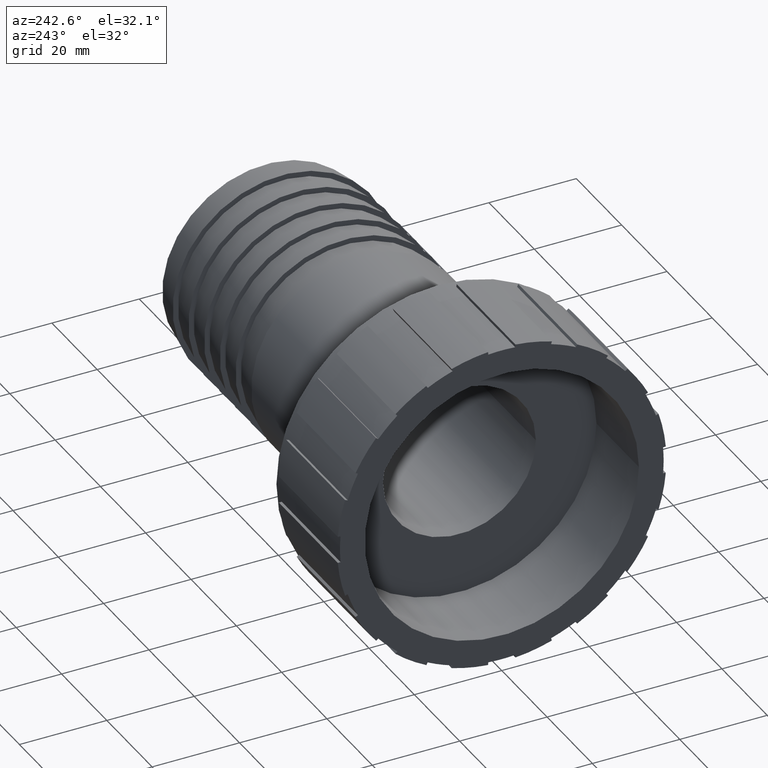
[diagram: clean part render]
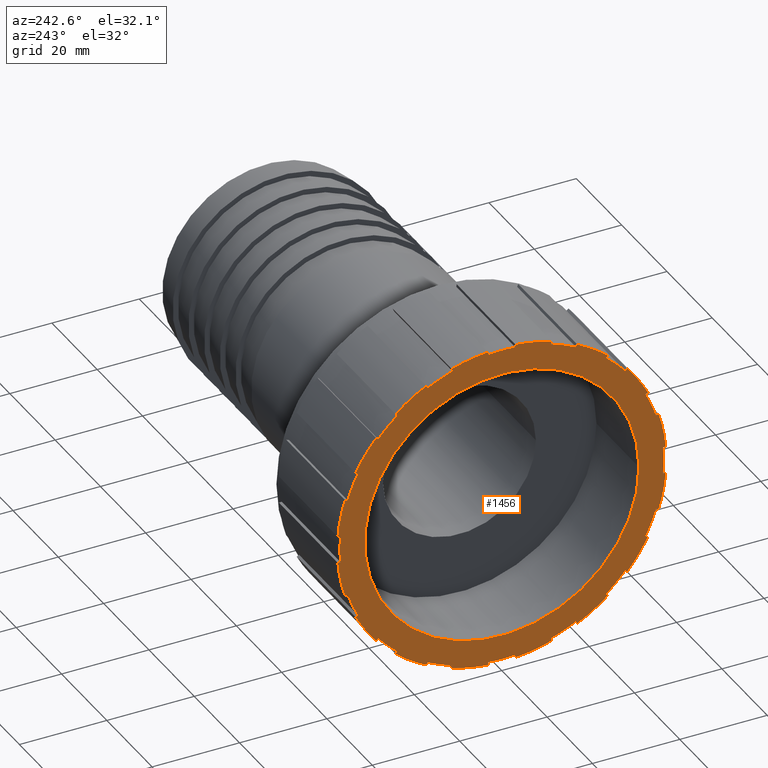
[diagram: same view with one face highlighted and labeled with its STEP entity id]
A machine part, auxiliary view. The second image highlights one B-rep face of the part: STEP entity #1456.
In plain terms, the highlighted planar face has unit normal (-1, 0, 0).
Its self-contained STEP definition (entity closure, byte-faithful):
#42=FACE_BOUND('',#260,.T.);
#62=CIRCLE('',#1543,37.02368);
#63=CIRCLE('',#1544,37.6512);
#64=CIRCLE('',#1545,37.02368);
#65=CIRCLE('',#1546,37.6512);
#66=CIRCLE('',#1547,37.02368);
#67=CIRCLE('',#1548,37.6512);
#68=CIRCLE('',#1549,37.02368);
#69=CIRCLE('',#1550,37.6512);
#70=CIRCLE('',#1551,37.02368);
#71=CIRCLE('',#1552,37.6512);
#72=CIRCLE('',#1553,37.02368);
#73=CIRCLE('',#1554,37.6512);
#74=CIRCLE('',#1555,37.02368);
#75=CIRCLE('',#1556,37.6512);
#76=CIRCLE('',#1557,37.02368);
#77=CIRCLE('',#1558,37.6512);
#78=CIRCLE('',#1559,37.02368);
#79=CIRCLE('',#1560,37.6512);
#80=CIRCLE('',#1561,37.02368);
#81=CIRCLE('',#1562,37.6512);
#82=CIRCLE('',#1563,37.02368);
#83=CIRCLE('',#1564,37.6512);
#84=CIRCLE('',#1565,37.02368);
#85=CIRCLE('',#1566,37.6512);
#86=CIRCLE('',#1567,37.02368);
#87=CIRCLE('',#1568,37.6512);
#88=CIRCLE('',#1569,37.02368);
#89=CIRCLE('',#1570,37.6512);
#90=CIRCLE('',#1571,37.02368);
#91=CIRCLE('',#1572,37.6512);
#92=CIRCLE('',#1573,37.02368);
#93=CIRCLE('',#1574,37.6512);
#94=CIRCLE('',#1575,31.376);
#175=FACE_OUTER_BOUND('',#259,.T.);
#259=EDGE_LOOP('',(#1067,#1068,#1069,#1070,#1071,#1072,#1073,#1074,#1075,
#1076,#1077,#1078,#1079,#1080,#1081,#1082,#1083,#1084,#1085,#1086,#1087,
#1088,#1089,#1090,#1091,#1092,#1093,#1094,#1095,#1096,#1097,#1098,#1099,
#1100,#1101,#1102,#1103,#1104,#1105,#1106,#1107,#1108,#1109,#1110,#1111,
#1112,#1113,#1114,#1115,#1116,#1117,#1118,#1119,#1120,#1121,#1122,#1123,
#1124,#1125,#1126,#1127,#1128,#1129,#1130));
#260=EDGE_LOOP('',(#1131));
#333=LINE('',#2147,#461);
#337=LINE('',#2156,#465);
#341=LINE('',#2165,#469);
#345=LINE('',#2174,#473);
#349=LINE('',#2183,#477);
#353=LINE('',#2192,#481);
#357=LINE('',#2201,#485);
#361=LINE('',#2210,#489);
#365=LINE('',#2219,#493);
#369=LINE('',#2228,#497);
#373=LINE('',#2237,#501);
#377=LINE('',#2246,#505);
#381=LINE('',#2255,#509);
#385=LINE('',#2264,#513);
#389=LINE('',#2273,#517);
#393=LINE('',#2282,#521);
#397=LINE('',#2291,#525);
#401=LINE('',#2300,#529);
#405=LINE('',#2309,#533);
#409=LINE('',#2318,#537);
#413=LINE('',#2327,#541);
#417=LINE('',#2336,#545);
#421=LINE('',#2345,#549);
#425=LINE('',#2354,#553);
#429=LINE('',#2363,#557);
#433=LINE('',#2372,#561);
#437=LINE('',#2381,#565);
#441=LINE('',#2390,#569);
#445=LINE('',#2399,#573);
#449=LINE('',#2408,#577);
#453=LINE('',#2419,#581);
#454=LINE('',#2423,#582);
#461=VECTOR('',#1683,0.627520000000013);
#465=VECTOR('',#1689,0.627520000000004);
#469=VECTOR('',#1695,0.627520000000008);
#473=VECTOR('',#1701,0.627519999999999);
#477=VECTOR('',#1707,0.627520000000017);
#481=VECTOR('',#1713,0.627520000000005);
#485=VECTOR('',#1719,0.627520000000018);
#489=VECTOR('',#1725,0.62752);
#493=VECTOR('',#1731,0.627520000000014);
#497=VECTOR('',#1737,0.627520000000005);
#501=VECTOR('',#1743,0.627520000000015);
#505=VECTOR('',#1749,0.627520000000008);
#509=VECTOR('',#1755,0.627520000000013);
#513=VECTOR('',#1761,0.627520000000006);
#517=VECTOR('',#1767,0.627520000000013);
#521=VECTOR('',#1773,0.627520000000001);
#525=VECTOR('',#1779,0.627520000000002);
#529=VECTOR('',#1785,0.62752000000001);
#533=VECTOR('',#1791,0.627520000000015);
#537=VECTOR('',#1797,0.62752000000001);
#541=VECTOR('',#1803,0.62752000000001);
#545=VECTOR('',#1809,0.62752000000001);
#549=VECTOR('',#1815,0.62752000000001);
#553=VECTOR('',#1821,0.627520000000001);
#557=VECTOR('',#1827,0.62752000000001);
#561=VECTOR('',#1833,0.627519999999997);
#565=VECTOR('',#1839,0.62752000000001);
#569=VECTOR('',#1845,0.627520000000006);
#573=VECTOR('',#1851,0.627520000000024);
#577=VECTOR('',#1857,0.627520000000006);
#581=VECTOR('',#1867,0.627520000000006);
#582=VECTOR('',#1870,0.627520000000006);
#589=VERTEX_POINT('',#2145);
#590=VERTEX_POINT('',#2146);
#593=VERTEX_POINT('',#2154);
#594=VERTEX_POINT('',#2155);
#597=VERTEX_POINT('',#2163);
#598=VERTEX_POINT('',#2164);
#601=VERTEX_POINT('',#2172);
#602=VERTEX_POINT('',#2173);
#605=VERTEX_POINT('',#2181);
#606=VERTEX_POINT('',#2182);
#609=VERTEX_POINT('',#2190);
#610=VERTEX_POINT('',#2191);
#613=VERTEX_POINT('',#2199);
#614=VERTEX_POINT('',#2200);
#617=VERTEX_POINT('',#2208);
#618=VERTEX_POINT('',#2209);
#621=VERTEX_POINT('',#2217);
#622=VERTEX_POINT('',#2218);
#625=VERTEX_POINT('',#2226);
#626=VERTEX_POINT('',#2227);
#629=VERTEX_POINT('',#2235);
#630=VERTEX_POINT('',#2236);
#633=VERTEX_POINT('',#2244);
#634=VERTEX_POINT('',#2245);
#637=VERTEX_POINT('',#2253);
#638=VERTEX_POINT('',#2254);
#641=VERTEX_POINT('',#2262);
#642=VERTEX_POINT('',#2263);
#645=VERTEX_POINT('',#2271);
#646=VERTEX_POINT('',#2272);
#649=VERTEX_POINT('',#2280);
#650=VERTEX_POINT('',#2281);
#653=VERTEX_POINT('',#2289);
#654=VERTEX_POINT('',#2290);
#657=VERTEX_POINT('',#2298);
#658=VERTEX_POINT('',#2299);
#661=VERTEX_POINT('',#2307);
#662=VERTEX_POINT('',#2308);
#665=VERTEX_POINT('',#2316);
#666=VERTEX_POINT('',#2317);
#669=VERTEX_POINT('',#2325);
#670=VERTEX_POINT('',#2326);
#673=VERTEX_POINT('',#2334);
#674=VERTEX_POINT('',#2335);
#677=VERTEX_POINT('',#2343);
#678=VERTEX_POINT('',#2344);
#681=VERTEX_POINT('',#2352);
#682=VERTEX_POINT('',#2353);
#685=VERTEX_POINT('',#2361);
#686=VERTEX_POINT('',#2362);
#689=VERTEX_POINT('',#2370);
#690=VERTEX_POINT('',#2371);
#693=VERTEX_POINT('',#2379);
#694=VERTEX_POINT('',#2380);
#697=VERTEX_POINT('',#2388);
#698=VERTEX_POINT('',#2389);
#701=VERTEX_POINT('',#2397);
#702=VERTEX_POINT('',#2398);
#705=VERTEX_POINT('',#2406);
#706=VERTEX_POINT('',#2407);
#709=VERTEX_POINT('',#2416);
#710=VERTEX_POINT('',#2418);
#711=VERTEX_POINT('',#2420);
#712=VERTEX_POINT('',#2422);
#713=VERTEX_POINT('',#2453);
#736=EDGE_CURVE('',#589,#590,#333,.T.);
#740=EDGE_CURVE('',#593,#594,#337,.T.);
#744=EDGE_CURVE('',#597,#598,#341,.T.);
#748=EDGE_CURVE('',#601,#602,#345,.T.);
#752=EDGE_CURVE('',#605,#606,#349,.T.);
#756=EDGE_CURVE('',#609,#610,#353,.T.);
#760=EDGE_CURVE('',#613,#614,#357,.T.);
#764=EDGE_CURVE('',#617,#618,#361,.T.);
#768=EDGE_CURVE('',#621,#622,#365,.T.);
#772=EDGE_CURVE('',#625,#626,#369,.T.);
#776=EDGE_CURVE('',#629,#630,#373,.T.);
#780=EDGE_CURVE('',#633,#634,#377,.T.);
#784=EDGE_CURVE('',#637,#638,#381,.T.);
#788=EDGE_CURVE('',#641,#642,#385,.T.);
#792=EDGE_CURVE('',#645,#646,#389,.T.);
#796=EDGE_CURVE('',#649,#650,#393,.T.);
#800=EDGE_CURVE('',#653,#654,#397,.T.);
#804=EDGE_CURVE('',#657,#658,#401,.T.);
#808=EDGE_CURVE('',#661,#662,#405,.T.);
#812=EDGE_CURVE('',#665,#666,#409,.T.);
#816=EDGE_CURVE('',#669,#670,#413,.T.);
#820=EDGE_CURVE('',#673,#674,#417,.T.);
#824=EDGE_CURVE('',#677,#678,#421,.T.);
#828=EDGE_CURVE('',#681,#682,#425,.T.);
#832=EDGE_CURVE('',#685,#686,#429,.T.);
#836=EDGE_CURVE('',#689,#690,#433,.T.);
#840=EDGE_CURVE('',#693,#694,#437,.T.);
#844=EDGE_CURVE('',#697,#698,#441,.T.);
#848=EDGE_CURVE('',#701,#702,#445,.T.);
#852=EDGE_CURVE('',#705,#706,#449,.T.);
#856=EDGE_CURVE('',#594,#589,#62,.T.);
#857=EDGE_CURVE('',#590,#709,#63,.T.);
#858=EDGE_CURVE('',#709,#710,#453,.T.);
#859=EDGE_CURVE('',#710,#711,#64,.T.);
#860=EDGE_CURVE('',#711,#712,#454,.T.);
#861=EDGE_CURVE('',#712,#705,#65,.T.);
#862=EDGE_CURVE('',#706,#701,#66,.T.);
#863=EDGE_CURVE('',#702,#697,#67,.T.);
#864=EDGE_CURVE('',#698,#693,#68,.T.);
#865=EDGE_CURVE('',#694,#689,#69,.T.);
#866=EDGE_CURVE('',#690,#685,#70,.T.);
#867=EDGE_CURVE('',#686,#681,#71,.T.);
#868=EDGE_CURVE('',#682,#677,#72,.T.);
#869=EDGE_CURVE('',#678,#673,#73,.T.);
#870=EDGE_CURVE('',#674,#669,#74,.T.);
#871=EDGE_CURVE('',#670,#665,#75,.T.);
#872=EDGE_CURVE('',#666,#661,#76,.T.);
#873=EDGE_CURVE('',#662,#657,#77,.T.);
#874=EDGE_CURVE('',#658,#653,#78,.T.);
#875=EDGE_CURVE('',#654,#649,#79,.T.);
#876=EDGE_CURVE('',#650,#645,#80,.T.);
#877=EDGE_CURVE('',#646,#641,#81,.T.);
#878=EDGE_CURVE('',#642,#637,#82,.T.);
#879=EDGE_CURVE('',#638,#633,#83,.T.);
#880=EDGE_CURVE('',#634,#629,#84,.T.);
#881=EDGE_CURVE('',#630,#625,#85,.T.);
#882=EDGE_CURVE('',#626,#621,#86,.T.);
#883=EDGE_CURVE('',#622,#617,#87,.T.);
#884=EDGE_CURVE('',#618,#613,#88,.T.);
#885=EDGE_CURVE('',#614,#609,#89,.T.);
#886=EDGE_CURVE('',#610,#605,#90,.T.);
#887=EDGE_CURVE('',#606,#601,#91,.T.);
#888=EDGE_CURVE('',#602,#597,#92,.T.);
#889=EDGE_CURVE('',#598,#593,#93,.T.);
#890=EDGE_CURVE('',#713,#713,#94,.T.);
#1067=ORIENTED_EDGE('',*,*,#740,.T.);
#1068=ORIENTED_EDGE('',*,*,#856,.T.);
#1069=ORIENTED_EDGE('',*,*,#736,.T.);
#1070=ORIENTED_EDGE('',*,*,#857,.T.);
#1071=ORIENTED_EDGE('',*,*,#858,.T.);
#1072=ORIENTED_EDGE('',*,*,#859,.T.);
#1073=ORIENTED_EDGE('',*,*,#860,.T.);
#1074=ORIENTED_EDGE('',*,*,#861,.T.);
#1075=ORIENTED_EDGE('',*,*,#852,.T.);
#1076=ORIENTED_EDGE('',*,*,#862,.T.);
#1077=ORIENTED_EDGE('',*,*,#848,.T.);
#1078=ORIENTED_EDGE('',*,*,#863,.T.);
#1079=ORIENTED_EDGE('',*,*,#844,.T.);
#1080=ORIENTED_EDGE('',*,*,#864,.T.);
#1081=ORIENTED_EDGE('',*,*,#840,.T.);
#1082=ORIENTED_EDGE('',*,*,#865,.T.);
#1083=ORIENTED_EDGE('',*,*,#836,.T.);
#1084=ORIENTED_EDGE('',*,*,#866,.T.);
#1085=ORIENTED_EDGE('',*,*,#832,.T.);
#1086=ORIENTED_EDGE('',*,*,#867,.T.);
#1087=ORIENTED_EDGE('',*,*,#828,.T.);
#1088=ORIENTED_EDGE('',*,*,#868,.T.);
#1089=ORIENTED_EDGE('',*,*,#824,.T.);
#1090=ORIENTED_EDGE('',*,*,#869,.T.);
#1091=ORIENTED_EDGE('',*,*,#820,.T.);
#1092=ORIENTED_EDGE('',*,*,#870,.T.);
#1093=ORIENTED_EDGE('',*,*,#816,.T.);
#1094=ORIENTED_EDGE('',*,*,#871,.T.);
#1095=ORIENTED_EDGE('',*,*,#812,.T.);
#1096=ORIENTED_EDGE('',*,*,#872,.T.);
#1097=ORIENTED_EDGE('',*,*,#808,.T.);
#1098=ORIENTED_EDGE('',*,*,#873,.T.);
#1099=ORIENTED_EDGE('',*,*,#804,.T.);
#1100=ORIENTED_EDGE('',*,*,#874,.T.);
#1101=ORIENTED_EDGE('',*,*,#800,.T.);
#1102=ORIENTED_EDGE('',*,*,#875,.T.);
#1103=ORIENTED_EDGE('',*,*,#796,.T.);
#1104=ORIENTED_EDGE('',*,*,#876,.T.);
#1105=ORIENTED_EDGE('',*,*,#792,.T.);
#1106=ORIENTED_EDGE('',*,*,#877,.T.);
#1107=ORIENTED_EDGE('',*,*,#788,.T.);
#1108=ORIENTED_EDGE('',*,*,#878,.T.);
#1109=ORIENTED_EDGE('',*,*,#784,.T.);
#1110=ORIENTED_EDGE('',*,*,#879,.T.);
#1111=ORIENTED_EDGE('',*,*,#780,.T.);
#1112=ORIENTED_EDGE('',*,*,#880,.T.);
#1113=ORIENTED_EDGE('',*,*,#776,.T.);
#1114=ORIENTED_EDGE('',*,*,#881,.T.);
#1115=ORIENTED_EDGE('',*,*,#772,.T.);
#1116=ORIENTED_EDGE('',*,*,#882,.T.);
#1117=ORIENTED_EDGE('',*,*,#768,.T.);
#1118=ORIENTED_EDGE('',*,*,#883,.T.);
#1119=ORIENTED_EDGE('',*,*,#764,.T.);
#1120=ORIENTED_EDGE('',*,*,#884,.T.);
#1121=ORIENTED_EDGE('',*,*,#760,.T.);
#1122=ORIENTED_EDGE('',*,*,#885,.T.);
#1123=ORIENTED_EDGE('',*,*,#756,.T.);
#1124=ORIENTED_EDGE('',*,*,#886,.T.);
#1125=ORIENTED_EDGE('',*,*,#752,.T.);
#1126=ORIENTED_EDGE('',*,*,#887,.T.);
#1127=ORIENTED_EDGE('',*,*,#748,.T.);
#1128=ORIENTED_EDGE('',*,*,#888,.T.);
#1129=ORIENTED_EDGE('',*,*,#744,.T.);
#1130=ORIENTED_EDGE('',*,*,#889,.T.);
#1131=ORIENTED_EDGE('',*,*,#890,.F.);
#1399=PLANE('',#1542);
#1456=ADVANCED_FACE('',(#175,#42),#1399,.T.);
#1542=AXIS2_PLACEMENT_3D('',#2414,#1861,#1862);
#1543=AXIS2_PLACEMENT_3D('',#2415,#1863,#1864);
#1544=AXIS2_PLACEMENT_3D('',#2417,#1865,#1866);
#1545=AXIS2_PLACEMENT_3D('',#2421,#1868,#1869);
#1546=AXIS2_PLACEMENT_3D('',#2424,#1871,#1872);
#1547=AXIS2_PLACEMENT_3D('',#2425,#1873,#1874);
#1548=AXIS2_PLACEMENT_3D('',#2426,#1875,#1876);
#1549=AXIS2_PLACEMENT_3D('',#2427,#1877,#1878);
#1550=AXIS2_PLACEMENT_3D('',#2428,#1879,#1880);
#1551=AXIS2_PLACEMENT_3D('',#2429,#1881,#1882);
#1552=AXIS2_PLACEMENT_3D('',#2430,#1883,#1884);
#1553=AXIS2_PLACEMENT_3D('',#2431,#1885,#1886);
#1554=AXIS2_PLACEMENT_3D('',#2432,#1887,#1888);
#1555=AXIS2_PLACEMENT_3D('',#2433,#1889,#1890);
#1556=AXIS2_PLACEMENT_3D('',#2434,#1891,#1892);
#1557=AXIS2_PLACEMENT_3D('',#2435,#1893,#1894);
#1558=AXIS2_PLACEMENT_3D('',#2436,#1895,#1896);
#1559=AXIS2_PLACEMENT_3D('',#2437,#1897,#1898);
#1560=AXIS2_PLACEMENT_3D('',#2438,#1899,#1900);
#1561=AXIS2_PLACEMENT_3D('',#2439,#1901,#1902);
#1562=AXIS2_PLACEMENT_3D('',#2440,#1903,#1904);
#1563=AXIS2_PLACEMENT_3D('',#2441,#1905,#1906);
#1564=AXIS2_PLACEMENT_3D('',#2442,#1907,#1908);
#1565=AXIS2_PLACEMENT_3D('',#2443,#1909,#1910);
#1566=AXIS2_PLACEMENT_3D('',#2444,#1911,#1912);
#1567=AXIS2_PLACEMENT_3D('',#2445,#1913,#1914);
#1568=AXIS2_PLACEMENT_3D('',#2446,#1915,#1916);
#1569=AXIS2_PLACEMENT_3D('',#2447,#1917,#1918);
#1570=AXIS2_PLACEMENT_3D('',#2448,#1919,#1920);
#1571=AXIS2_PLACEMENT_3D('',#2449,#1921,#1922);
#1572=AXIS2_PLACEMENT_3D('',#2450,#1923,#1924);
#1573=AXIS2_PLACEMENT_3D('',#2451,#1925,#1926);
#1574=AXIS2_PLACEMENT_3D('',#2452,#1927,#1928);
#1575=AXIS2_PLACEMENT_3D('',#2454,#1929,#1930);
#1683=DIRECTION('',(0.,-0.30436239448129,0.95255631477914));
#1689=DIRECTION('',(0.,0.458342316566504,-0.888775742718292));
#1695=DIRECTION('',(0.,-0.645721706788113,0.763572836985868));
#1701=DIRECTION('',(0.,0.76357283698587,-0.64572170678811));
#1707=DIRECTION('',(0.,-0.888775742718293,0.458342316566502));
#1713=DIRECTION('',(0.,0.95255631477914,-0.304362394481288));
#1719=DIRECTION('',(0.,-0.996521728591783,0.0833333333333313));
#1725=DIRECTION('',(0.,0.996521728591783,0.0833333333333344));
#1731=DIRECTION('',(0.,-0.95255631477914,-0.30436239448129));
#1737=DIRECTION('',(0.,0.888775742718292,0.458342316566504));
#1743=DIRECTION('',(0.,-0.763572836985868,-0.645721706788112));
#1749=DIRECTION('',(0.,0.645721706788111,0.763572836985869));
#1755=DIRECTION('',(0.,-0.458342316566502,-0.888775742718293));
#1761=DIRECTION('',(0.,0.304362394481288,0.95255631477914));
#1767=DIRECTION('',(0.,-0.0833333333333318,-0.996521728591783));
#1773=DIRECTION('',(0.,-0.0833333333333338,0.996521728591783));
#1779=DIRECTION('',(0.,0.30436239448129,-0.95255631477914));
#1785=DIRECTION('',(0.,-0.458342316566504,0.888775742718292));
#1791=DIRECTION('',(0.,0.645721706788112,-0.763572836985868));
#1797=DIRECTION('',(0.,-0.763572836985869,0.645721706788111));
#1803=DIRECTION('',(0.,0.888775742718292,-0.458342316566502));
#1809=DIRECTION('',(0.,-0.95255631477914,0.304362394481289));
#1815=DIRECTION('',(0.,0.996521728591783,-0.0833333333333321));
#1821=DIRECTION('',(0.,-0.996521728591783,-0.0833333333333335));
#1827=DIRECTION('',(0.,0.95255631477914,0.30436239448129));
#1833=DIRECTION('',(0.,-0.888775742718292,-0.458342316566503));
#1839=DIRECTION('',(0.,0.763572836985868,0.645721706788112));
#1845=DIRECTION('',(0.,-0.645721706788111,-0.763572836985869));
#1851=DIRECTION('',(0.,0.458342316566502,0.888775742718292));
#1857=DIRECTION('',(0.,-0.304362394481289,-0.95255631477914));
#1861=DIRECTION('center_axis',(-1.,0.,0.));
#1862=DIRECTION('ref_axis',(0.,0.,1.));
#1863=DIRECTION('center_axis',(-1.,0.,0.));
#1864=DIRECTION('ref_axis',(0.,-0.38268343236509,0.923879532511286));
#1865=DIRECTION('center_axis',(-1.,0.,0.));
#1866=DIRECTION('ref_axis',(0.,0.,1.));
#1867=DIRECTION('',(0.,0.0833333333333333,-0.996521728591783));
#1868=DIRECTION('center_axis',(-1.,0.,0.));
#1869=DIRECTION('ref_axis',(0.,0.,1.));
#1870=DIRECTION('',(0.,0.0833333333333324,0.996521728591783));
#1871=DIRECTION('center_axis',(-1.,0.,0.));
#1872=DIRECTION('ref_axis',(0.,0.,1.));
#1873=DIRECTION('center_axis',(-1.,0.,0.));
#1874=DIRECTION('ref_axis',(0.,0.38268343236509,0.923879532511287));
#1875=DIRECTION('center_axis',(-1.,0.,0.));
#1876=DIRECTION('ref_axis',(0.,0.,1.));
#1877=DIRECTION('center_axis',(-1.,0.,0.));
#1878=DIRECTION('ref_axis',(0.,0.707106781186547,0.707106781186548));
#1879=DIRECTION('center_axis',(-1.,0.,0.));
#1880=DIRECTION('ref_axis',(0.,0.,1.));
#1881=DIRECTION('center_axis',(-1.,0.,0.));
#1882=DIRECTION('ref_axis',(0.,0.923879532511287,0.38268343236509));
#1883=DIRECTION('center_axis',(-1.,0.,0.));
#1884=DIRECTION('ref_axis',(0.,0.,1.));
#1885=DIRECTION('center_axis',(-1.,0.,0.));
#1886=DIRECTION('ref_axis',(0.,1.,2.99868361174566E-16));
#1887=DIRECTION('center_axis',(-1.,0.,0.));
#1888=DIRECTION('ref_axis',(0.,0.,1.));
#1889=DIRECTION('center_axis',(-1.,0.,0.));
#1890=DIRECTION('ref_axis',(0.,0.923879532511287,-0.38268343236509));
#1891=DIRECTION('center_axis',(-1.,0.,0.));
#1892=DIRECTION('ref_axis',(0.,0.,1.));
#1893=DIRECTION('center_axis',(-1.,0.,0.));
#1894=DIRECTION('ref_axis',(0.,0.707106781186548,-0.707106781186547));
#1895=DIRECTION('center_axis',(-1.,0.,0.));
#1896=DIRECTION('ref_axis',(0.,0.,1.));
#1897=DIRECTION('center_axis',(-1.,0.,0.));
#1898=DIRECTION('ref_axis',(0.,0.38268343236509,-0.923879532511287));
#1899=DIRECTION('center_axis',(-1.,0.,0.));
#1900=DIRECTION('ref_axis',(0.,0.,1.));
#1901=DIRECTION('center_axis',(-1.,0.,0.));
#1902=DIRECTION('ref_axis',(0.,5.99736722349133E-16,-1.));
#1903=DIRECTION('center_axis',(-1.,0.,0.));
#1904=DIRECTION('ref_axis',(0.,0.,1.));
#1905=DIRECTION('center_axis',(-1.,0.,0.));
#1906=DIRECTION('ref_axis',(0.,-0.382683432365089,-0.923879532511287));
#1907=DIRECTION('center_axis',(-1.,0.,0.));
#1908=DIRECTION('ref_axis',(0.,0.,1.));
#1909=DIRECTION('center_axis',(-1.,0.,0.));
#1910=DIRECTION('ref_axis',(0.,-0.707106781186547,-0.707106781186548));
#1911=DIRECTION('center_axis',(-1.,0.,0.));
#1912=DIRECTION('ref_axis',(0.,0.,1.));
#1913=DIRECTION('center_axis',(-1.,0.,0.));
#1914=DIRECTION('ref_axis',(0.,-0.923879532511286,-0.38268343236509));
#1915=DIRECTION('center_axis',(-1.,0.,0.));
#1916=DIRECTION('ref_axis',(0.,0.,1.));
#1917=DIRECTION('center_axis',(-1.,0.,0.));
#1918=DIRECTION('ref_axis',(0.,-1.,-1.07952610022844E-15));
#1919=DIRECTION('center_axis',(-1.,0.,0.));
#1920=DIRECTION('ref_axis',(0.,0.,1.));
#1921=DIRECTION('center_axis',(-1.,0.,0.));
#1922=DIRECTION('ref_axis',(0.,-0.923879532511287,0.382683432365089));
#1923=DIRECTION('center_axis',(-1.,0.,0.));
#1924=DIRECTION('ref_axis',(0.,0.,1.));
#1925=DIRECTION('center_axis',(-1.,0.,0.));
#1926=DIRECTION('ref_axis',(0.,-0.707106781186548,0.707106781186547));
#1927=DIRECTION('center_axis',(-1.,0.,0.));
#1928=DIRECTION('ref_axis',(0.,0.,1.));
#1929=DIRECTION('center_axis',(-1.,0.,0.));
#1930=DIRECTION('ref_axis',(0.,0.,1.));
#2145=CARTESIAN_POINT('',(0.,-11.268615897309,35.2671401803621));
#2146=CARTESIAN_POINT('',(0.,-11.4596093870939,35.8648883190124));
#2147=CARTESIAN_POINT('',(0.,-7.18308559057869,22.480745528914));
#2154=CARTESIAN_POINT('',(0.,-17.2571382295087,33.4634732442349));
#2155=CARTESIAN_POINT('',(0.,-16.9695192590169,32.9057486901643));
#2156=CARTESIAN_POINT('',(0.,-11.7804582601007,22.8435934480504));
#2163=CARTESIAN_POINT('',(0.,-23.9069938411769,28.270276373257));
#2164=CARTESIAN_POINT('',(0.,-24.3121971266206,28.7494335999223));
#2165=CARTESIAN_POINT('',(2.22044604925031E-15,-18.6973124901313,22.1097723555167));
#2172=CARTESIAN_POINT('',(0.,-28.7494335999224,24.3121971266205));
#2173=CARTESIAN_POINT('',(0.,-28.270276373257,23.9069938411768));
#2174=CARTESIAN_POINT('',(0.,-23.2819242598075,19.688552476144));
#2181=CARTESIAN_POINT('',(0.,-32.9057486901644,16.9695192590169));
#2182=CARTESIAN_POINT('',(0.,-33.463473244235,17.2571382295087));
#2183=CARTESIAN_POINT('',(0.,-29.1240379915252,15.0192882177226));
#2190=CARTESIAN_POINT('',(0.,-35.8648883190124,11.4596093870939));
#2191=CARTESIAN_POINT('',(0.,-35.2671401803622,11.268615897309));
#2192=CARTESIAN_POINT('',(0.,-31.8682891931494,10.1826093180622));
#2199=CARTESIAN_POINT('',(0.,-36.894901592429,3.08530666666663));
#2200=CARTESIAN_POINT('',(0.,-37.520238907555,3.13759999999996));
#2201=CARTESIAN_POINT('',(0.,-34.339175009333,2.87158607317896));
#2208=CARTESIAN_POINT('',(0.,-37.5202389075549,-3.13760000000004));
#2209=CARTESIAN_POINT('',(0.,-36.894901592429,-3.08530666666671));
#2210=CARTESIAN_POINT('',(-2.22044604925031E-15,-34.0265063517701,-2.84543940651236));
#2217=CARTESIAN_POINT('',(0.,-35.2671401803621,-11.268615897309));
#2218=CARTESIAN_POINT('',(0.,-35.8648883190124,-11.4596093870939));
#2219=CARTESIAN_POINT('',(0.,-32.1671632624744,-10.2781060629547));
#2226=CARTESIAN_POINT('',(0.,-33.4634732442349,-17.2571382295087));
#2227=CARTESIAN_POINT('',(0.,-32.9057486901643,-16.9695192590169));
#2228=CARTESIAN_POINT('',(0.,-28.8451757144899,-14.8754787324767));
#2235=CARTESIAN_POINT('',(0.,-28.270276373257,-23.9069938411769));
#2236=CARTESIAN_POINT('',(0.,-28.7494335999223,-24.3121971266206));
#2237=CARTESIAN_POINT('',(0.,-23.5215028731402,-19.8911541188658));
#2244=CARTESIAN_POINT('',(0.,-24.3121971266205,-28.7494335999224));
#2245=CARTESIAN_POINT('',(0.,-23.9069938411768,-28.270276373257));
#2246=CARTESIAN_POINT('',(2.22044604925031E-15,-18.4947108474094,-21.8701937421841));
#2253=CARTESIAN_POINT('',(0.,-16.9695192590169,-32.9057486901644));
#2254=CARTESIAN_POINT('',(0.,-17.2571382295087,-33.463473244235));
#2255=CARTESIAN_POINT('',(0.,-11.9242677453466,-23.1224557250857));
#2262=CARTESIAN_POINT('',(0.,-11.4596093870939,-35.8648883190124));
#2263=CARTESIAN_POINT('',(0.,-11.268615897309,-35.2671401803622));
#2264=CARTESIAN_POINT('',(-2.22044604925031E-15,-7.08758884568621,-22.1818714595888));
#2271=CARTESIAN_POINT('',(0.,-3.08530666666665,-36.894901592429));
#2272=CARTESIAN_POINT('',(0.,-3.13759999999998,-37.520238907555));
#2273=CARTESIAN_POINT('',(0.,-1.67774444444446,-20.0629055269564));
#2280=CARTESIAN_POINT('',(0.,3.13760000000002,-37.5202389075549));
#2281=CARTESIAN_POINT('',(0.,3.08530666666669,-36.894901592429));
#2282=CARTESIAN_POINT('',(0.,1.4337088888889,-17.1446647230355));
#2289=CARTESIAN_POINT('',(0.,11.268615897309,-35.2671401803621));
#2290=CARTESIAN_POINT('',(0.,11.4596093870939,-35.8648883190124));
#2291=CARTESIAN_POINT('',(0.,4.2765237965152,-13.3841427900984));
#2298=CARTESIAN_POINT('',(0.,17.2571382295087,-33.4634732442349));
#2299=CARTESIAN_POINT('',(0.,16.9695192590169,-32.9057486901644));
#2300=CARTESIAN_POINT('',(0.,5.18906099891622,-10.0621552421139));
#2307=CARTESIAN_POINT('',(0.,23.9069938411769,-28.270276373257));
#2308=CARTESIAN_POINT('',(0.,24.3121971266206,-28.7494335999223));
#2309=CARTESIAN_POINT('',(0.,5.61488463648922,-6.63966124440562));
#2316=CARTESIAN_POINT('',(0.,28.7494335999224,-24.3121971266205));
#2317=CARTESIAN_POINT('',(0.,28.270276373257,-23.9069938411768));
#2318=CARTESIAN_POINT('',(2.22044604925031E-15,4.9883521134495,-4.21844136503286));
#2325=CARTESIAN_POINT('',(0.,32.9057486901644,-16.9695192590169));
#2326=CARTESIAN_POINT('',(0.,33.463473244235,-17.2571382295087));
#2327=CARTESIAN_POINT('',(-2.22044604925031E-15,4.3394352527097,-2.23785001178612));
#2334=CARTESIAN_POINT('',(0.,35.8648883190124,-11.4596093870939));
#2335=CARTESIAN_POINT('',(0.,35.2671401803622,-11.268615897309));
#2336=CARTESIAN_POINT('',(-2.22044604925031E-15,3.39885098721281,-1.08600657924674));
#2343=CARTESIAN_POINT('',(0.,36.894901592429,-3.08530666666666));
#2344=CARTESIAN_POINT('',(0.,37.520238907555,-3.13759999999999));
#2345=CARTESIAN_POINT('',(0.,3.18106389822191,-0.266013926821041));
#2352=CARTESIAN_POINT('',(0.,37.5202389075549,3.13760000000001));
#2353=CARTESIAN_POINT('',(0.,36.894901592429,3.08530666666668));
#2354=CARTESIAN_POINT('',(2.22044604925031E-15,2.86839524065896,0.239867260154347));
#2361=CARTESIAN_POINT('',(0.,35.2671401803622,11.268615897309));
#2362=CARTESIAN_POINT('',(0.,35.8648883190124,11.4596093870939));
#2363=CARTESIAN_POINT('',(0.,3.69772505653792,1.18150332413917));
#2370=CARTESIAN_POINT('',(0.,33.4634732442349,17.2571382295087));
#2371=CARTESIAN_POINT('',(0.,32.9057486901644,16.9695192590169));
#2372=CARTESIAN_POINT('',(0.,4.06057297567443,2.09404052654019));
#2379=CARTESIAN_POINT('',(0.,28.270276373257,23.9069938411769));
#2380=CARTESIAN_POINT('',(0.,28.7494335999224,24.3121971266205));
#2381=CARTESIAN_POINT('',(0.,5.22793072678221,4.42104300775469));
#2388=CARTESIAN_POINT('',(0.,24.3121971266205,28.7494335999224));
#2389=CARTESIAN_POINT('',(0.,23.9069938411768,28.270276373257));
#2390=CARTESIAN_POINT('',(0.,5.41228299376741,6.40008263107294));
#2397=CARTESIAN_POINT('',(0.,16.9695192590169,32.9057486901644));
#2398=CARTESIAN_POINT('',(0.,17.2571382295087,33.463473244235));
#2399=CARTESIAN_POINT('',(2.22044604925031E-15,5.33287048416215,10.3410175191492));
#2406=CARTESIAN_POINT('',(0.,11.4596093870939,35.8648883190124));
#2407=CARTESIAN_POINT('',(0.,11.268615897309,35.2671401803622));
#2408=CARTESIAN_POINT('',(2.22044604925031E-15,4.18102705162277,13.0852687207733));
#2414=CARTESIAN_POINT('Origin',(0.,-31.376,0.));
#2415=CARTESIAN_POINT('Origin',(0.,0.,0.));
#2416=CARTESIAN_POINT('',(0.,-3.1376,37.5202389075549));
#2417=CARTESIAN_POINT('Origin',(0.,0.,0.));
#2418=CARTESIAN_POINT('',(0.,-3.08530666666667,36.894901592429));
#2419=CARTESIAN_POINT('',(0.,-1.65159777777778,19.7502368693935));
#2420=CARTESIAN_POINT('',(0.,3.08530666666667,36.894901592429));
#2421=CARTESIAN_POINT('Origin',(0.,0.,0.));
#2422=CARTESIAN_POINT('',(0.,3.1376,37.5202389075549));
#2423=CARTESIAN_POINT('',(0.,1.45985555555558,17.4573333805985));
#2424=CARTESIAN_POINT('Origin',(0.,0.,0.));
#2425=CARTESIAN_POINT('Origin',(0.,0.,0.));
#2426=CARTESIAN_POINT('Origin',(0.,0.,0.));
#2427=CARTESIAN_POINT('Origin',(0.,0.,0.));
#2428=CARTESIAN_POINT('Origin',(0.,0.,0.));
#2429=CARTESIAN_POINT('Origin',(0.,0.,0.));
#2430=CARTESIAN_POINT('Origin',(0.,0.,0.));
#2431=CARTESIAN_POINT('Origin',(0.,0.,0.));
#2432=CARTESIAN_POINT('Origin',(0.,0.,0.));
#2433=CARTESIAN_POINT('Origin',(0.,0.,0.));
#2434=CARTESIAN_POINT('Origin',(0.,0.,0.));
#2435=CARTESIAN_POINT('Origin',(0.,0.,0.));
#2436=CARTESIAN_POINT('Origin',(0.,0.,0.));
#2437=CARTESIAN_POINT('Origin',(0.,0.,0.));
#2438=CARTESIAN_POINT('Origin',(0.,0.,0.));
#2439=CARTESIAN_POINT('Origin',(0.,0.,0.));
#2440=CARTESIAN_POINT('Origin',(0.,0.,0.));
#2441=CARTESIAN_POINT('Origin',(0.,0.,0.));
#2442=CARTESIAN_POINT('Origin',(0.,0.,0.));
#2443=CARTESIAN_POINT('Origin',(0.,0.,0.));
#2444=CARTESIAN_POINT('Origin',(0.,0.,0.));
#2445=CARTESIAN_POINT('Origin',(0.,0.,0.));
#2446=CARTESIAN_POINT('Origin',(0.,0.,0.));
#2447=CARTESIAN_POINT('Origin',(0.,0.,0.));
#2448=CARTESIAN_POINT('Origin',(0.,0.,0.));
#2449=CARTESIAN_POINT('Origin',(0.,0.,0.));
#2450=CARTESIAN_POINT('Origin',(0.,0.,0.));
#2451=CARTESIAN_POINT('Origin',(0.,0.,0.));
#2452=CARTESIAN_POINT('Origin',(0.,0.,0.));
#2453=CARTESIAN_POINT('',(0.,-31.376,0.));
#2454=CARTESIAN_POINT('Origin',(0.,0.,0.));